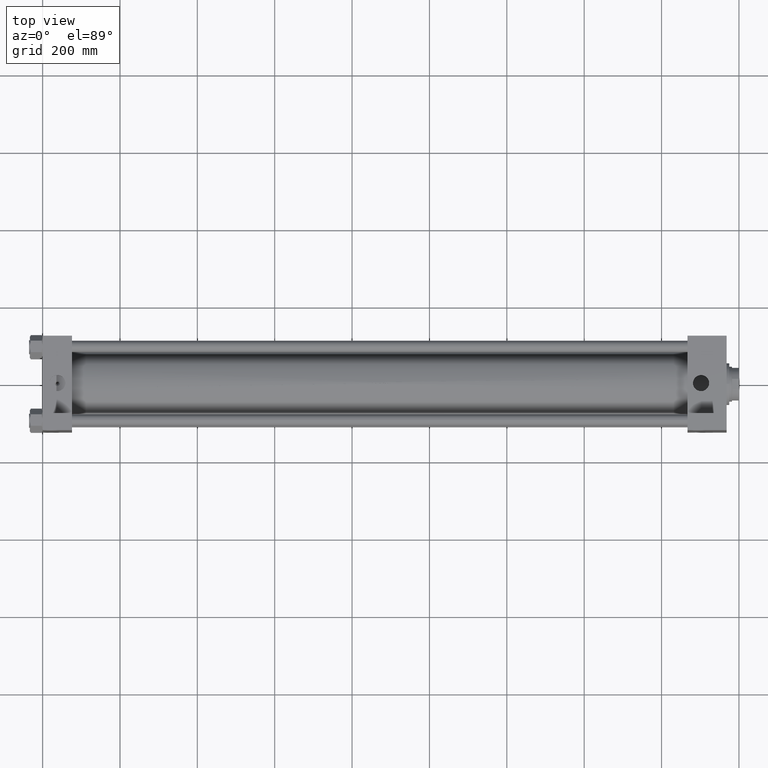
[diagram: clean part render]
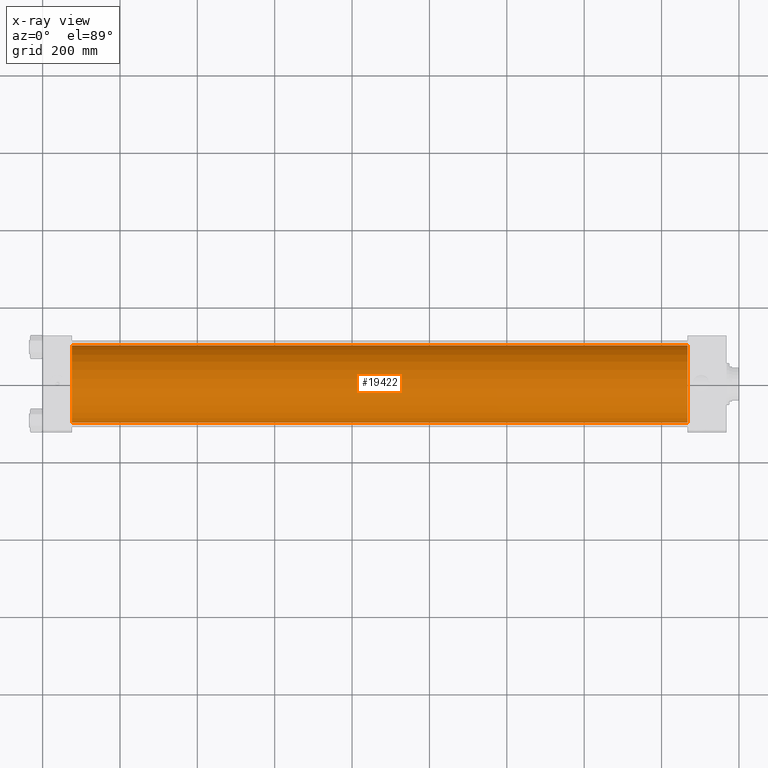
[diagram: x-ray — body ghosted, one internal face saturated and labeled with its STEP entity id]
A machine part, top view, then the same camera in x-ray: the body is ghosted and one INTERNAL B-rep face — a face not visible from any outside direction — is saturated and labeled: STEP entity #19422.
In plain terms, the highlighted cylindrical surface (partial cylindrical patch) has radius 100 mm, axis along (-1, -0, 0).
Its self-contained STEP definition (entity closure, byte-faithful):
#712 = AXIS2_PLACEMENT_3D ( 'NONE', #25559, #47712, #47466 ) ;
#1758 = LINE ( 'NONE', #24187, #36669 ) ;
#2070 = DIRECTION ( 'NONE',  ( 0.000000000000000000, 0.000000000000000000, -1.000000000000000000 ) ) ;
#2905 = CYLINDRICAL_SURFACE ( 'NONE', #712, 100.0000000000000000 ) ;
#3173 = CIRCLE ( 'NONE', #36618, 100.0000000000000000 ) ;
#3885 = EDGE_CURVE ( 'NONE', #29253, #7909, #3173, .T. ) ;
#4475 = ORIENTED_EDGE ( 'NONE', *, *, #16389, .T. ) ;
#7909 = VERTEX_POINT ( 'NONE', #40177 ) ;
#12626 = CARTESIAN_POINT ( 'NONE',  ( 76.00000000000000000, 0.000000000000000000, 99.50000000000000000 ) ) ;
#13507 = DIRECTION ( 'NONE',  ( 0.000000000000000000, 0.000000000000000000, -1.000000000000000000 ) ) ;
#13770 = DIRECTION ( 'NONE',  ( 1.000000000000000000, 0.000000000000000000, 0.000000000000000000 ) ) ;
#13868 = FACE_OUTER_BOUND ( 'NONE', #29110, .T. ) ;
#15374 = CARTESIAN_POINT ( 'NONE',  ( 1667.000000000000000, 1.224646799147353217E-14, -100.5000000000000000 ) ) ;
#16389 = EDGE_CURVE ( 'NONE', #45698, #33321, #47901, .T. ) ;
#18557 = DIRECTION ( 'NONE',  ( -1.000000000000000000, -0.000000000000000000, -0.000000000000000000 ) ) ;
#19422 = ADVANCED_FACE ( 'NONE', ( #13868 ), #2905, .F. ) ;
#20824 = CARTESIAN_POINT ( 'NONE',  ( 1667.000000000000000, 0.000000000000000000, -0.5000000000000004441 ) ) ;
#21530 = VECTOR ( 'NONE', #18557, 1000.000000000000000 ) ;
#21944 = CARTESIAN_POINT ( 'NONE',  ( 1667.000000000000000, 1.224646799147353217E-14, -100.5000000000000000 ) ) ;
#24187 = CARTESIAN_POINT ( 'NONE',  ( 1667.000000000000000, 0.000000000000000000, 99.50000000000000000 ) ) ;
#24232 = DIRECTION ( 'NONE',  ( 1.000000000000000000, 0.000000000000000000, 0.000000000000000000 ) ) ;
#25559 = CARTESIAN_POINT ( 'NONE',  ( 1667.000000000000000, 0.000000000000000000, -0.5000000000000004441 ) ) ;
#26644 = ORIENTED_EDGE ( 'NONE', *, *, #3885, .F. ) ;
#28555 = EDGE_CURVE ( 'NONE', #45698, #29253, #1758, .T. ) ;
#29110 = EDGE_LOOP ( 'NONE', ( #4475, #47095, #26644, #47823 ) ) ;
#29253 = VERTEX_POINT ( 'NONE', #12626 ) ;
#31572 = AXIS2_PLACEMENT_3D ( 'NONE', #20824, #24232, #13507 ) ;
#33321 = VERTEX_POINT ( 'NONE', #21944 ) ;
#35915 = CARTESIAN_POINT ( 'NONE',  ( 76.00000000000000000, 0.000000000000000000, -0.5000000000000004441 ) ) ;
#36618 = AXIS2_PLACEMENT_3D ( 'NONE', #35915, #13770, #2070 ) ;
#36669 = VECTOR ( 'NONE', #39732, 1000.000000000000000 ) ;
#37057 = LINE ( 'NONE', #15374, #21530 ) ;
#39732 = DIRECTION ( 'NONE',  ( -1.000000000000000000, -0.000000000000000000, -0.000000000000000000 ) ) ;
#40177 = CARTESIAN_POINT ( 'NONE',  ( 76.00000000000000000, 1.224646799147353217E-14, -100.5000000000000000 ) ) ;
#43962 = CARTESIAN_POINT ( 'NONE',  ( 1667.000000000000000, 0.000000000000000000, 99.50000000000000000 ) ) ;
#44099 = EDGE_CURVE ( 'NONE', #33321, #7909, #37057, .T. ) ;
#45698 = VERTEX_POINT ( 'NONE', #43962 ) ;
#47095 = ORIENTED_EDGE ( 'NONE', *, *, #44099, .T. ) ;
#47466 = DIRECTION ( 'NONE',  ( 0.000000000000000000, 0.000000000000000000, 1.000000000000000000 ) ) ;
#47712 = DIRECTION ( 'NONE',  ( -1.000000000000000000, -0.000000000000000000, -0.000000000000000000 ) ) ;
#47823 = ORIENTED_EDGE ( 'NONE', *, *, #28555, .F. ) ;
#47901 = CIRCLE ( 'NONE', #31572, 100.0000000000000000 ) ;